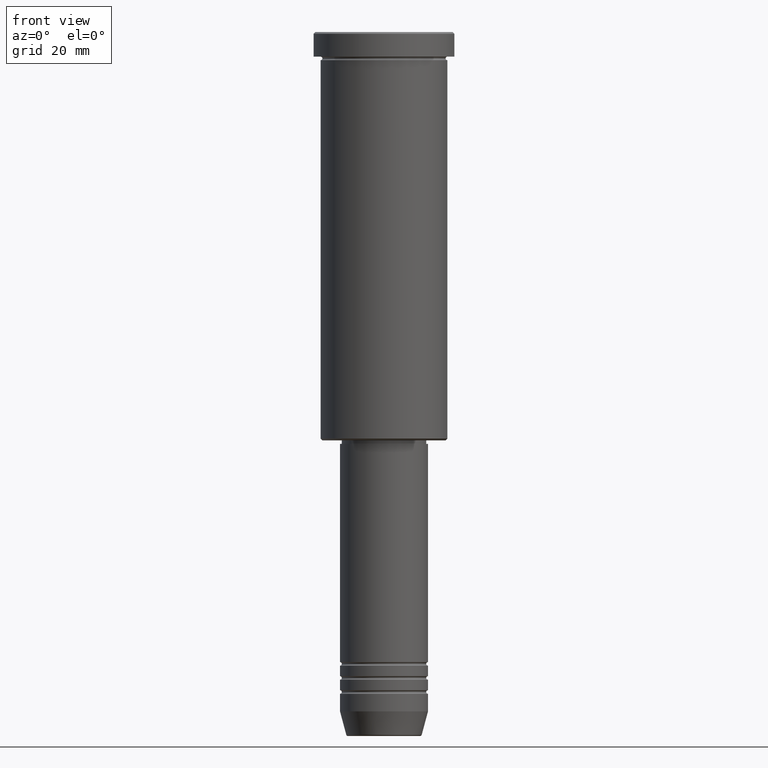
[diagram: clean part render]
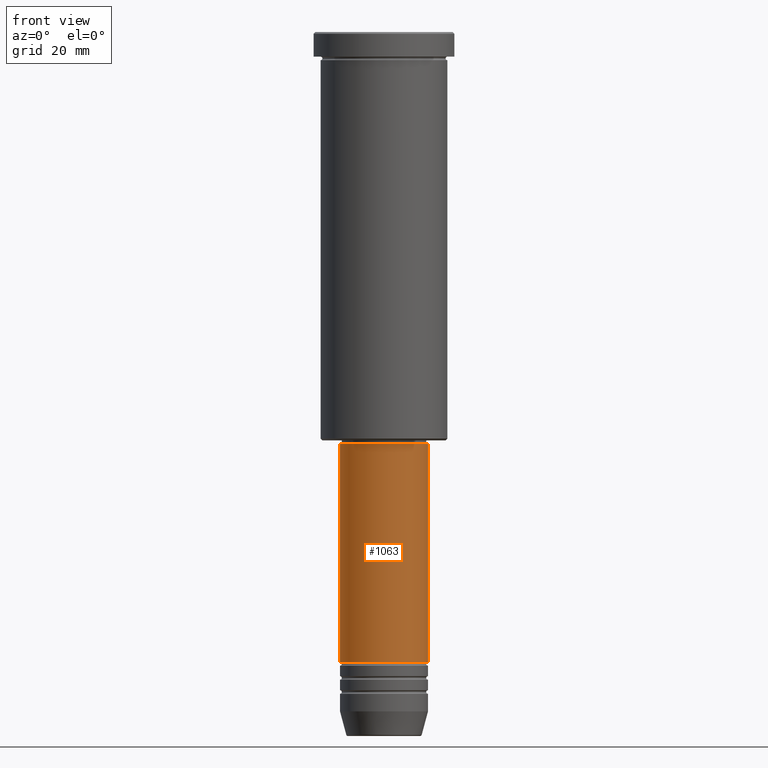
[diagram: same view with one face highlighted and labeled with its STEP entity id]
A machine part, front view. The second image highlights one B-rep face of the part: STEP entity #1063.
In plain terms, the highlighted cylindrical surface (partial cylindrical patch) has radius 12.5 mm, axis along (-0, -0, 1).
Its self-contained STEP definition (entity closure, byte-faithful):
#20 = ORIENTED_EDGE ( 'NONE', *, *, #702, .F. ) ;
#34 = CARTESIAN_POINT ( 'NONE',  ( -12.50000000000000000, 1.530808498934191521E-15, -117.0000000000000142 ) ) ;
#65 = DIRECTION ( 'NONE',  ( -0.000000000000000000, -0.000000000000000000, 1.000000000000000000 ) ) ;
#75 = ORIENTED_EDGE ( 'NONE', *, *, #523, .T. ) ;
#127 = DIRECTION ( 'NONE',  ( -0.000000000000000000, -0.000000000000000000, 1.000000000000000000 ) ) ;
#158 = AXIS2_PLACEMENT_3D ( 'NONE', #706, #1082, #258 ) ;
#231 = DIRECTION ( 'NONE',  ( 1.000000000000000000, 0.000000000000000000, 0.000000000000000000 ) ) ;
#241 = CARTESIAN_POINT ( 'NONE',  ( 0.000000000000000000, 0.000000000000000000, 0.000000000000000000 ) ) ;
#258 = DIRECTION ( 'NONE',  ( 1.000000000000000000, 0.000000000000000000, 0.000000000000000000 ) ) ;
#259 = CARTESIAN_POINT ( 'NONE',  ( 12.50000000000000000, 0.000000000000000000, -117.0000000000000142 ) ) ;
#282 = VECTOR ( 'NONE', #65, 1000.000000000000000 ) ;
#283 = VERTEX_POINT ( 'NONE', #825 ) ;
#321 = DIRECTION ( 'NONE',  ( -0.000000000000000000, -0.000000000000000000, 1.000000000000000000 ) ) ;
#324 = LINE ( 'NONE', #981, #282 ) ;
#338 = AXIS2_PLACEMENT_3D ( 'NONE', #1051, #127, #231 ) ;
#355 = VERTEX_POINT ( 'NONE', #34 ) ;
#397 = EDGE_LOOP ( 'NONE', ( #587, #75, #1138, #20 ) ) ;
#402 = VERTEX_POINT ( 'NONE', #667 ) ;
#438 = DIRECTION ( 'NONE',  ( -0.000000000000000000, -0.000000000000000000, 1.000000000000000000 ) ) ;
#487 = VECTOR ( 'NONE', #438, 1000.000000000000000 ) ;
#520 = FACE_OUTER_BOUND ( 'NONE', #397, .T. ) ;
#523 = EDGE_CURVE ( 'NONE', #402, #283, #876, .T. ) ;
#536 = LINE ( 'NONE', #809, #487 ) ;
#574 = EDGE_CURVE ( 'NONE', #283, #1159, #324, .T. ) ;
#587 = ORIENTED_EDGE ( 'NONE', *, *, #1143, .F. ) ;
#595 = DIRECTION ( 'NONE',  ( 1.000000000000000000, 0.000000000000000000, 0.000000000000000000 ) ) ;
#603 = CIRCLE ( 'NONE', #158, 12.50000000000000000 ) ;
#667 = CARTESIAN_POINT ( 'NONE',  ( -12.50000000000000000, 1.530808498934191521E-15, -179.0000000000000284 ) ) ;
#702 = EDGE_CURVE ( 'NONE', #355, #1159, #603, .T. ) ;
#706 = CARTESIAN_POINT ( 'NONE',  ( 0.000000000000000000, 0.000000000000000000, -117.0000000000000142 ) ) ;
#809 = CARTESIAN_POINT ( 'NONE',  ( -12.50000000000000000, 1.530808498934191521E-15, 0.000000000000000000 ) ) ;
#825 = CARTESIAN_POINT ( 'NONE',  ( 12.50000000000000000, 0.000000000000000000, -179.0000000000000284 ) ) ;
#876 = CIRCLE ( 'NONE', #338, 12.50000000000000000 ) ;
#980 = CYLINDRICAL_SURFACE ( 'NONE', #1012, 12.50000000000000000 ) ;
#981 = CARTESIAN_POINT ( 'NONE',  ( 12.50000000000000000, 0.000000000000000000, 0.000000000000000000 ) ) ;
#1012 = AXIS2_PLACEMENT_3D ( 'NONE', #241, #321, #595 ) ;
#1051 = CARTESIAN_POINT ( 'NONE',  ( 0.000000000000000000, 0.000000000000000000, -179.0000000000000284 ) ) ;
#1063 = ADVANCED_FACE ( 'NONE', ( #520 ), #980, .T. ) ;
#1082 = DIRECTION ( 'NONE',  ( -0.000000000000000000, -0.000000000000000000, 1.000000000000000000 ) ) ;
#1138 = ORIENTED_EDGE ( 'NONE', *, *, #574, .T. ) ;
#1143 = EDGE_CURVE ( 'NONE', #402, #355, #536, .T. ) ;
#1159 = VERTEX_POINT ( 'NONE', #259 ) ;